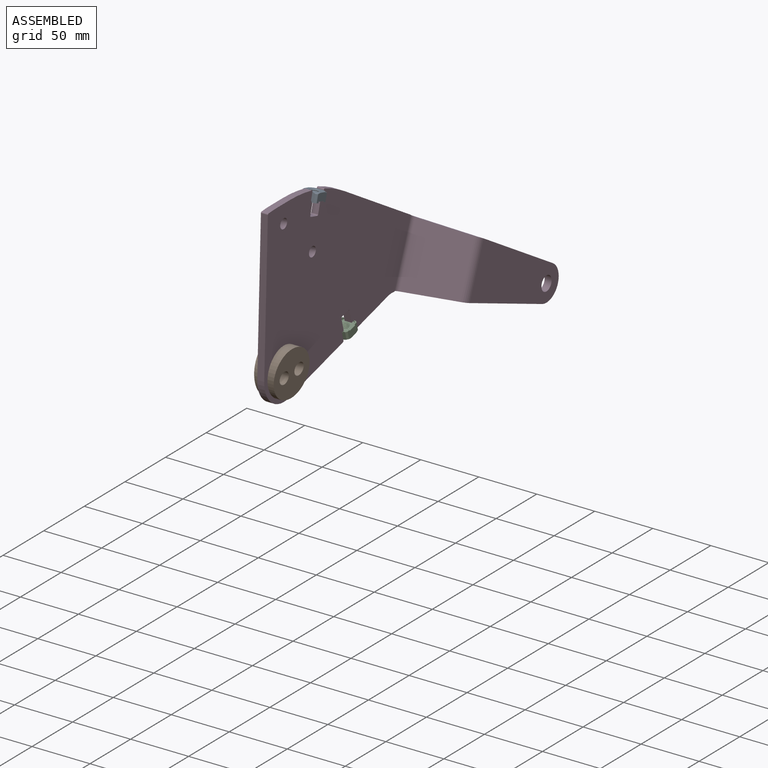
[diagram: assembled view]
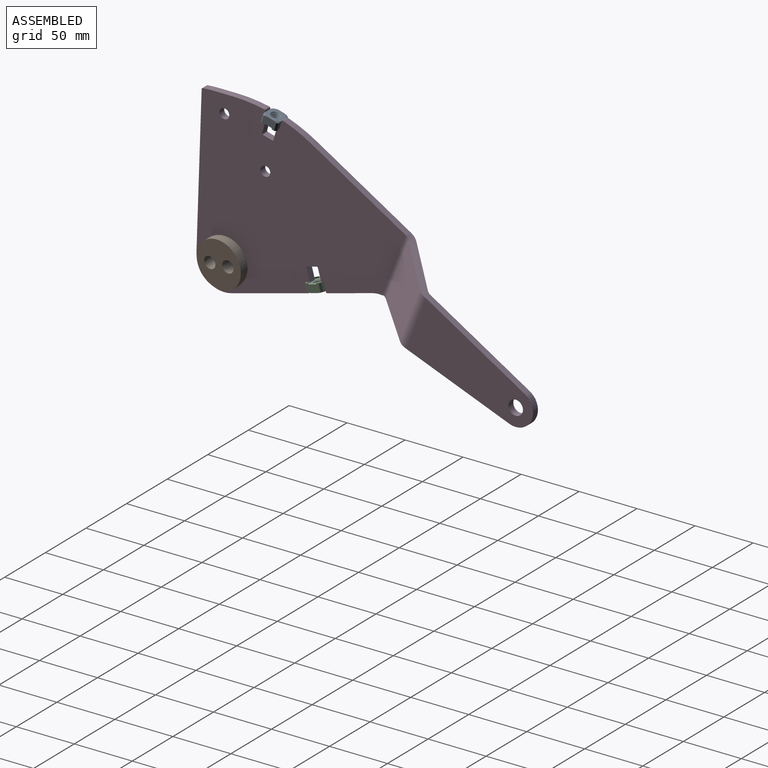
[diagram: assembled view, second angle]
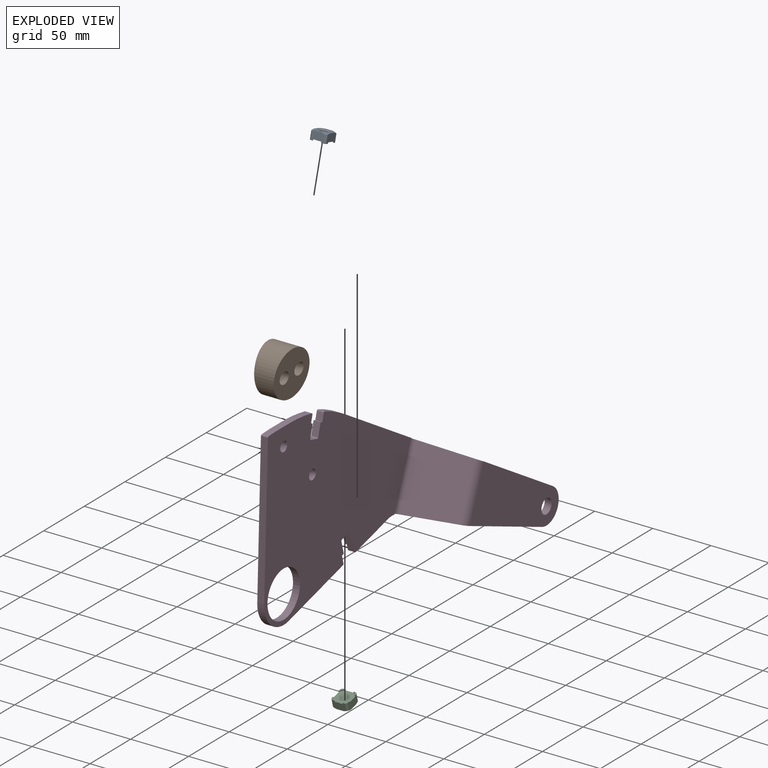
[diagram: exploded view]
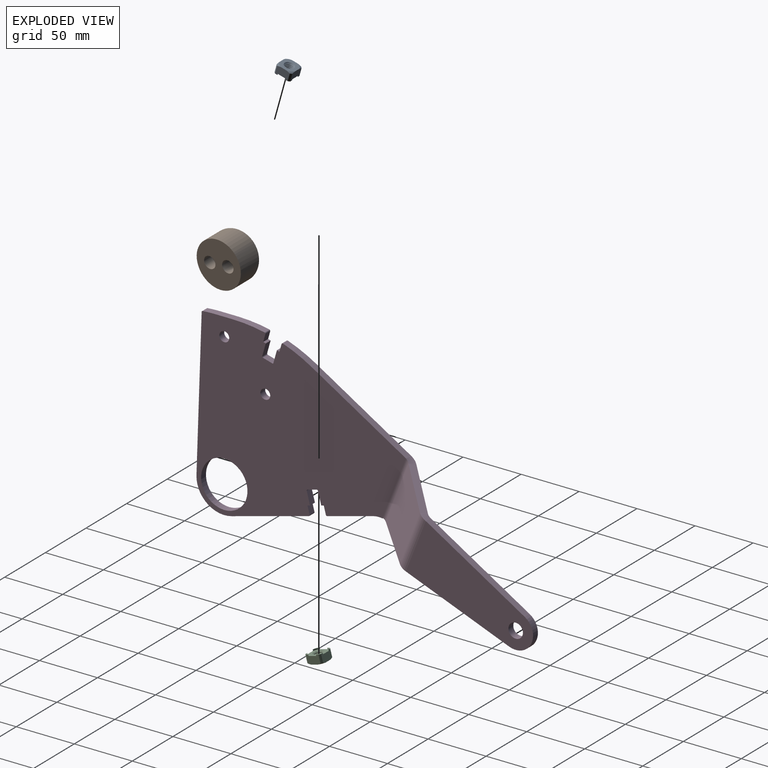
[diagram: exploded view, second angle]
ASSEMBLY  parts=4 mates=3
PART A: 44 faces, bbox 17x17x7.8 mm
  f0: cone r=3.32mm half-angle=45deg, axis (0,0,-1), area 26.3mm2, adj f16,f31
  f1: cone r=4mm half-angle=60deg, axis (0,0,1), area 12.5mm2, adj f2,f5
  f2: torus R=3.95mm, axis (0,0,1), area 4.8mm2, adj f1,f3
  f3: cone r=3.32mm half-angle=60deg, axis (0,0,-1), area 0.7mm2, adj f2,f4
  f4: cone r=4.14mm half-angle=45deg, axis (0,0,1), area 5.7mm2, adj f3,f22
  f5: cone r=4.14mm half-angle=45deg, axis (0,0,1), area 6.7mm2, adj f1,f18
  f6: cone r=3.32mm half-angle=60deg, axis (0,0,-1), area 18mm2, adj f8,f18
  f7: cone r=4mm half-angle=60deg, axis (0,0,1), area 18mm2, adj f8,f21
  f8: torus R=3.95mm, axis (0,0,1), area 4.8mm2, adj f6,f7
  f9: cone r=3.32mm half-angle=60deg, axis (0,0,-1), area 18mm2, adj f11,f21
  f10: cone r=4mm half-angle=60deg, axis (0,0,1), area 18mm2, adj f11,f20
  f11: torus R=3.95mm, axis (0,0,1), area 4.8mm2, adj f9,f10
  f12: cone r=3.32mm half-angle=60deg, axis (0,0,-1), area 18mm2, adj f14,f20
  f13: cone r=4mm half-angle=60deg, axis (0,0,1), area 18mm2, adj f14,f19
  f14: torus R=3.95mm, axis (0,0,1), area 4.8mm2, adj f12,f13
  f15: cone r=3.32mm half-angle=60deg, axis (0,0,-1), area 18mm2, adj f17,f19
  f16: cone r=4mm half-angle=60deg, axis (0,0,1), area 17.5mm2, adj f0,f17
  f17: torus R=3.95mm, axis (0,0,1), area 4.8mm2, adj f15,f16
  f18: cylinder r=3.32mm len=6.65mm, axis (0,0,1), area 4.6mm2, adj f5,f6
  f19: cylinder r=3.32mm len=6.65mm, axis (0,0,1), area 6.5mm2, adj f13,f15
  f20: cylinder r=3.32mm len=6.65mm, axis (0,0,1), area 6.5mm2, adj f10,f12
  f21: cylinder r=3.32mm len=6.65mm, axis (0,0,1), area 6.5mm2, adj f7,f9
  f22: plane 14x14mm, normal (0,0,1), area 122.4mm2, adj f4,f32,f33,f34,f35,f36,f38,f40
  f23: cylinder r=9mm len=6.67mm, axis (0,0,1), area 12.7mm2, adj f28,f32,f35,f43
  f24: cylinder r=9mm len=6.67mm, axis (0,0,1), area 12.7mm2, adj f27,f34,f35,f41
  f25: cylinder r=9mm len=6.67mm, axis (0,0,1), area 12.7mm2, adj f29,f33,f34,f37
  f26: cylinder r=9mm len=6.67mm, axis (0,0,1), area 12.7mm2, adj f30,f32,f33,f39
  f27: cone r=7.56mm half-angle=60deg, axis (0,0,1), area 6.8mm2, adj f24,f31,f34,f35
  f28: cone r=7.56mm half-angle=60deg, axis (0,0,1), area 6.8mm2, adj f23,f31,f32,f35
  f29: cone r=7.56mm half-angle=60deg, axis (0,0,1), area 6.8mm2, adj f25,f31,f33,f34
  f30: cone r=7.56mm half-angle=60deg, axis (0,0,1), area 6.8mm2, adj f26,f31,f32,f33
  f31: plane 14x14mm, normal (0,0,-1), area 117.2mm2, adj f0,f27,f28,f29,f30,f32,f33,f34
  f32: plane 11.61x7.8mm, normal (-1,0,0), area 75.9mm2, adj f22,f23,f26,f28,f30,f31,f38,f39
  f33: plane 11.61x7.8mm, normal (0,-1,0), area 75.9mm2, adj f22,f25,f26,f29,f30,f31,f36,f37
  f34: plane 11.61x7.8mm, normal (1,0,0), area 75.9mm2, adj f22,f24,f25,f27,f29,f31,f36,f37
  f35: plane 11.61x7.8mm, normal (0,1,0), area 75.9mm2, adj f22,f23,f24,f27,f28,f31,f40,f41
  f36: cylinder r=7.79mm len=3.58mm, axis (0,0,-1), area 5.2mm2, adj f22,f33,f34,f37
  f37: plane 3.58x3.58mm, normal (0,0,1), area 4.1mm2, adj f25,f33,f34,f36
  f38: cylinder r=7.79mm len=3.58mm, axis (0,0,-1), area 5.2mm2, adj f22,f32,f33,f39
  f39: plane 3.58x3.58mm, normal (0,0,1), area 4.1mm2, adj f26,f32,f33,f38
  f40: cylinder r=7.79mm len=3.58mm, axis (0,0,-1), area 5.2mm2, adj f22,f34,f35,f41
  f41: plane 3.58x3.58mm, normal (0,0,1), area 4.1mm2, adj f24,f34,f35,f40
  f42: cylinder r=7.79mm len=3.58mm, axis (0,0,-1), area 5.2mm2, adj f22,f32,f35,f43
  f43: plane 3.58x3.58mm, normal (0,0,1), area 4.1mm2, adj f23,f32,f35,f42
PART B: 5 faces, bbox 24.6x40.8x40.8 mm
  f0: cylinder r=20mm len=40mm, axis (-1,0,0), area 2466.5mm2, adj f1,f3
  f1: plane 40.83x40.83mm, normal (1,-0.07,-0.07), area 1094.5mm2, adj f0,f2,f4
  f2: cylinder r=5.15mm len=20.62mm, axis (1,-0.07,-0.07), area 604mm2, adj f1,f3
  f3: plane 40.14x40.14mm, normal (-1,-0.07,-0.07), area 1094.5mm2, adj f0,f2,f4
  f4: cylinder r=5.15mm len=22.73mm, axis (-1,-0.07,-0.07), area 674.7mm2, adj f1,f3
PART C: same geometry as A
PART D: 57 faces, bbox 40x314x173 mm
  f0: cylinder r=130.5mm len=27.13mm, axis (1,0,0), area 164mm2, adj f1,f28,f29,f31
  f1: plane 15x6mm, normal (0,0,1), area 90mm2, adj f0,f2,f28,f29
  f2: cylinder r=130.5mm len=11.09mm, axis (1,0,0), area 66.6mm2, adj f1,f28,f29,f32
  f3: plane 128.23x6mm, normal (0,-1,0.03), area 769.8mm2, adj f4,f28,f29,f32
  f4: cylinder r=24mm len=30.21mm, axis (1,0,0), area 268.9mm2, adj f3,f5,f28,f29
  f5: plane 66.64x17.86mm, normal (0,0.26,-0.97), area 414mm2, adj f4,f28,f29,f35
  f6: plane 6.76x6mm, normal (0,0.97,0.26), area 42mm2, adj f7,f28,f29,f35
  f7: plane 6x2.17mm, normal (0,0.26,-0.97), area 13.5mm2, adj f6,f8,f28,f29
  f8: plane 10.63x6mm, normal (0,0.97,0.26), area 66mm2, adj f7,f28,f29,f33
  f9: plane 7.73x6mm, normal (0,0.26,-0.97), area 48mm2, adj f28,f29,f33,f36
  f10: plane 10.63x6mm, normal (0,-0.97,-0.26), area 66mm2, adj f11,f28,f29,f36
  f11: plane 6x2.17mm, normal (0,0.26,-0.97), area 13.5mm2, adj f10,f12,f28,f29
  f12: plane 6.76x6mm, normal (0,-0.97,-0.26), area 42mm2, adj f11,f28,f29,f34
  f13: plane 39.38x10.55mm, normal (0,0.26,-0.97), area 244.6mm2, adj f14,f28,f29,f34
  f14: cylinder r=20mm len=8.2mm, axis (1,0,0), area 49.6mm2, adj f13,f15,f28,f29
  f15: plane 6x0.45mm, normal (0,0.93,-0.36), area 2.9mm2, adj f14,f28,f29,f53
  f16: plane 81.37x49.49mm, normal (0,0.52,0.85), area 571.4mm2, adj f17,f28,f29,f54
  f17: cylinder r=130.5mm len=24.67mm, axis (1,0,0), area 164mm2, adj f16,f28,f29,f30
  f18: plane 6.49x6mm, normal (0,-0.96,0.27), area 40.4mm2, adj f19,f28,f29,f30
  f19: plane 6x2.17mm, normal (0,0.27,0.96), area 13.5mm2, adj f18,f20,f28,f29
  f20: plane 10.59x6mm, normal (0,-0.96,0.27), area 66mm2, adj f19,f28,f29,f38
  f21: plane 7.7x6mm, normal (0,0.27,0.96), area 48mm2, adj f28,f29,f37,f38
  f22: plane 10.59x6mm, normal (0,0.96,-0.27), area 66mm2, adj f23,f28,f29,f37
  f23: plane 6x2.17mm, normal (0,0.27,0.96), area 13.5mm2, adj f22,f27,f28,f29
  f24: cylinder r=20mm len=40mm, axis (1,0,0), area 754mm2, adj f28,f29
  f25: cylinder r=4.25mm len=8.5mm, axis (1,0,0), area 160.2mm2, adj f28,f29
  f26: cylinder r=4.25mm len=8.5mm, axis (1,0,0), area 160.2mm2, adj f28,f29
  f27: plane 6.49x6mm, normal (0,0.96,-0.27), area 40.4mm2, adj f23,f28,f29,f31
  f28: plane 180.68x154.5mm, normal (1,0,0), area 18085.7mm2, adj f0,f1,f2,f3,f4,f5,f6,f7
  f29: plane 180.68x154.5mm, normal (-1,0,0), area 18085.7mm2, adj f0,f1,f2,f3,f4,f5,f6,f7
  f30: cylinder r=1mm len=6mm, axis (1,0,0), area 9.8mm2, adj f17,f18,f28,f29
  f31: cylinder r=1mm len=6mm, axis (1,0,0), area 9.8mm2, adj f0,f27,f28,f29
  f32: cylinder r=1mm len=6mm, axis (1,0,0), area 8.7mm2, adj f2,f3,f28,f29
  f33: cylinder r=1mm len=6mm, axis (-1,0,0), area 9.4mm2, adj f8,f9,f28,f29
  f34: cylinder r=1mm len=6mm, axis (1,0,0), area 9.4mm2, adj f12,f13,f28,f29
  f35: cylinder r=1mm len=6mm, axis (1,0,0), area 9.4mm2, adj f5,f6,f28,f29
  f36: cylinder r=1mm len=6mm, axis (-1,0,0), area 9.4mm2, adj f9,f10,f28,f29
  f37: cylinder r=1mm len=6mm, axis (-1,0,0), area 9.4mm2, adj f21,f22,f28,f29
  f38: cylinder r=1mm len=6mm, axis (-1,0,0), area 9.4mm2, adj f20,f21,f28,f29
  f39: plane 36.67x34.39mm, normal (0,-0.36,-0.93), area 278.1mm2, adj f41,f42,f49,f53
  f40: plane 34.39x34.39mm, normal (0.09,0.46,0.89), area 280.6mm2, adj f41,f42,f50,f54
  f41: plane 63.25x50.44mm, normal (0.77,-0.6,0.23), area 2359.4mm2, adj f39,f40,f51,f56
  f42: plane 63.25x50.44mm, normal (-0.77,0.6,-0.23), area 2359.4mm2, adj f39,f40,f52,f55
  f43: cylinder r=15mm len=27.82mm, axis (1,0,0), area 267mm2, adj f44,f46,f47,f48
  f44: plane 85.28x51.86mm, normal (0,0.52,0.85), area 598.9mm2, adj f43,f47,f48,f50
  f45: cylinder r=6.25mm len=12.5mm, axis (1,0,0), area 235.6mm2, adj f47,f48
  f46: plane 89.15x34.77mm, normal (0,-0.36,-0.93), area 574.1mm2, adj f43,f47,f48,f49
  f47: plane 109.6x79.68mm, normal (1,0,0), area 3930.9mm2, adj f43,f44,f45,f46,f51
  f48: plane 109.6x79.68mm, normal (-1,0,0), area 3930.9mm2, adj f43,f44,f45,f46,f52
  f49: plane 7.4x7.19mm, normal (0,-0.36,-0.93), area 37.7mm2, adj f39,f46,f51,f52
  f50: bspline ~7.4x6.94mm, area 38.1mm2, adj f40,f44,f51,f52
  f51: cylinder r=12mm len=47.32mm, axis (0,-0.36,-0.93), area 397.6mm2, adj f41,f47,f49,f50
  f52: cylinder r=6mm len=45.92mm, axis (0,-0.36,-0.93), area 198.7mm2, adj f42,f48,f49,f50
  f53: plane 7.4x7.19mm, normal (0,-0.36,-0.93), area 37.7mm2, adj f15,f39,f55,f56
  f54: bspline ~7.4x6.69mm, area 38.4mm2, adj f16,f40,f55,f56
  f55: cylinder r=12mm len=54.42mm, axis (0,-0.36,-0.93), area 458.2mm2, adj f29,f42,f53,f54
  f56: cylinder r=6mm len=53.02mm, axis (0,-0.36,-0.93), area 229.2mm2, adj f28,f41,f53,f54
PLACE A rot(axis=(1,0,0),164.3deg) t=(0,181.97,-138.46)mm
PLACE B t=(-0.52,0,0)mm
PLACE C rot(axis=(1,0,0),15deg) t=(0,220.17,-251.88)mm
PLACE D at identity fixed
MATE fastened A.f0 <-> D.f19  axis (0,-0.27,-0.96) through (0,181.97,-138.46)mm
MATE fastened B.f0 <-> D.f4  axis (-1,0,0) through (0,141.42,-256.42)mm
MATE fastened C.f0 <-> D.f11  axis (0,-0.26,0.97) through (0,220.17,-251.88)mm
